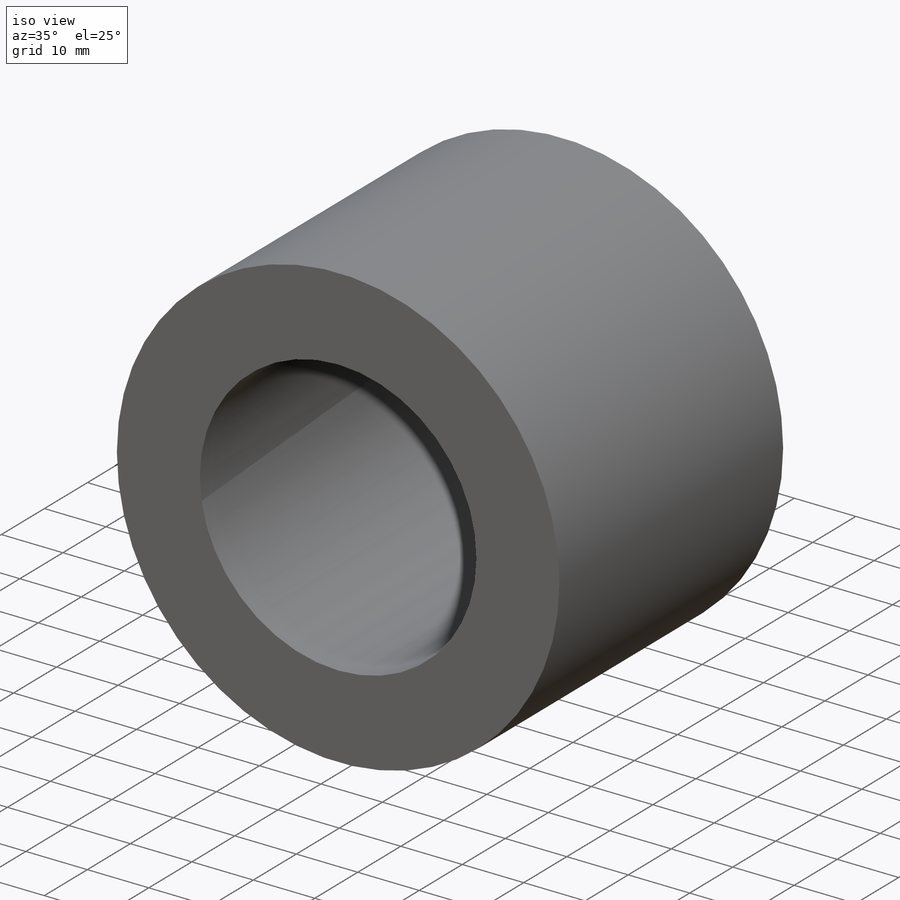
[diagram: iso view]
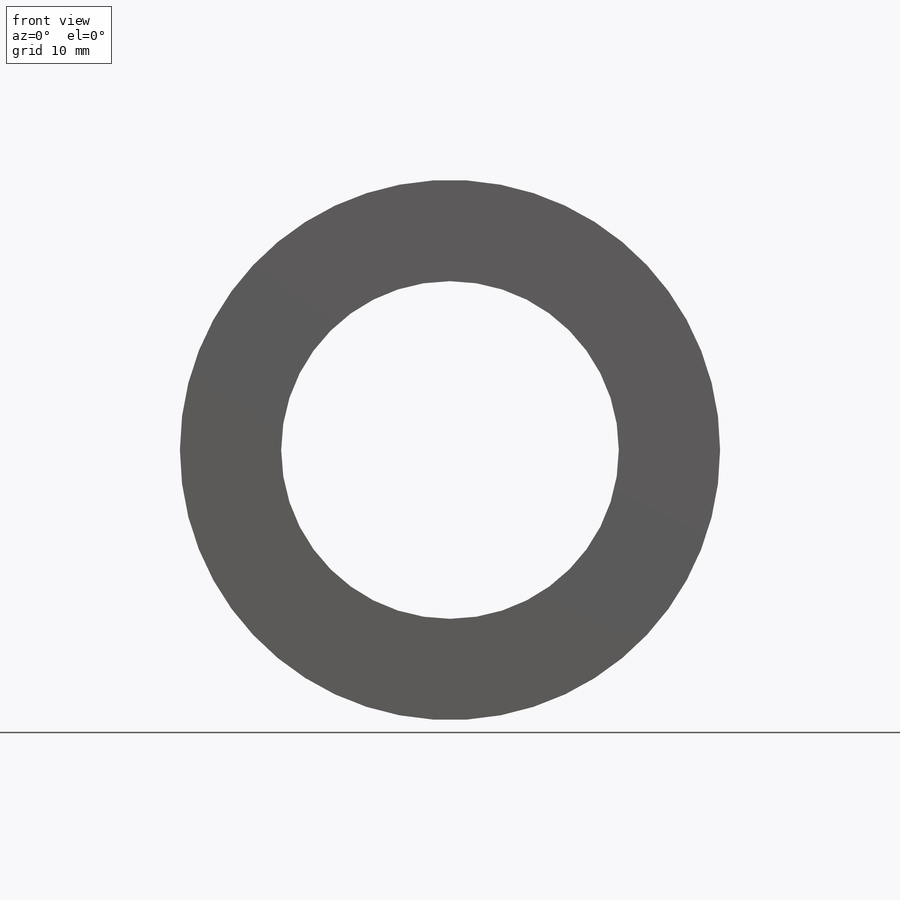
[diagram: front view]
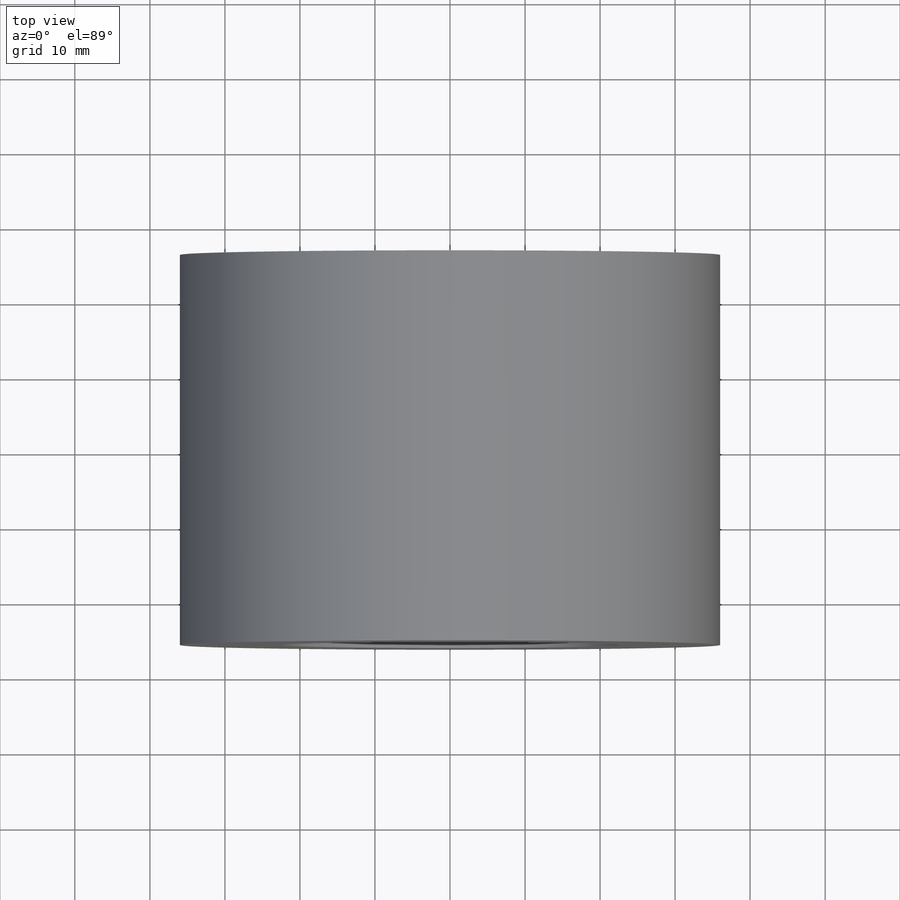
[diagram: top view]
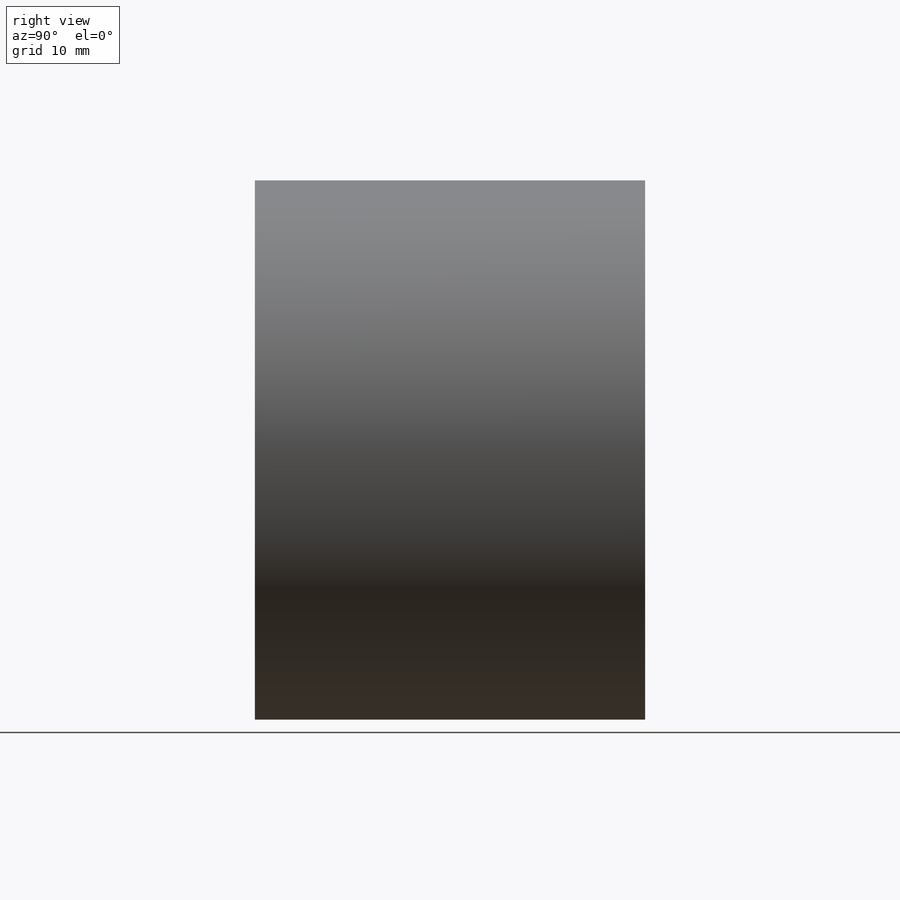
[diagram: right view]
SOLIDWORKS PART (.sldprt)
format: sldprt  version: not decoded by parser v0  size: 192,000 bytes
history: native  units: mm
features: sketch x6, plane x4, material x1, extrude x1 (+12 scaffold rows collapsed)
feature tree (24):
  scaffold x12  (default folders/planes/origin — collapsed)
  material  "Material <not specified>"
  sketch  "Sketch1"  dims[D1=72.0mm D2=45.0mm]
  extrude  "Boss-Extrude1"  Depth=52mm
  sketch  "Sketch12"  dims[c1.D1=~163.434661mm c1.D2=240.0mm c1.D3=95.0mm c1.D4=50.0mm c1.D5=96.0mm c1.D7=160.0mm c1.D10=20.0mm c1.D11=80.0mm c1.D12=65.0mm c1.D14=~68.25332mm c2.D4=~42.329795mm c2.D1=162.0mm c3.D4=~107.318695mm c3.D5=~72.677728mm c3.D6=120.0mm c3.D8=20.0mm c3.D9=~573.234216mm c3.D12=~10.664885mm c3.D13=25.0mm c3.D14=~13.278801mm c4.D4=50.0mm]
  plane  "Plane11"
  sketch  "Sketch14"  dims[D1=72.5mm]
  plane  "Plane12"
  sketch  "Sketch15"  dims[D1=72.5mm]
  plane  "Plane13"
  sketch  "Sketch16"  dims[D1=50.5mm]
  plane  "Plane14"
  sketch  "Sketch17"  dims[D1=50.0mm]
decode coverage: 7 of 7 modeling features carry decoded parameters
note: ~ marks probable driven/reference dimensions
note: suppression state not decoded; provenance and decode notes live in map.json
